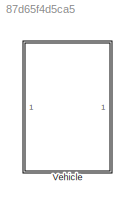
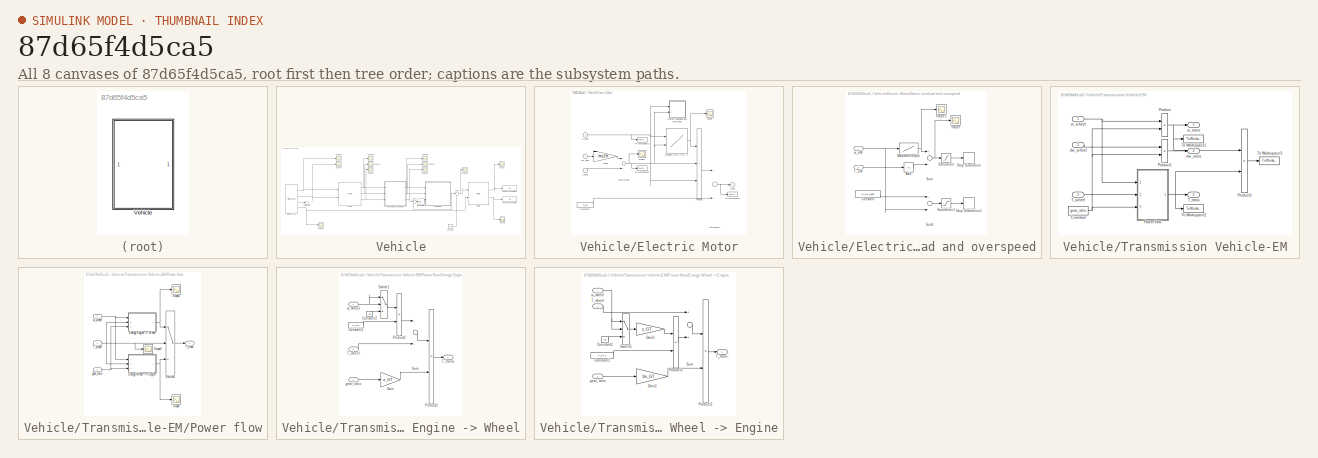
[diagram: thumbnail index - all 8 canvases of the model, root first then tree order]
MODEL slx_87d65f4d5ca5
KIND model
CONFIG AbsTol = auto
CONFIG EnableMultiTasking = on
CONFIG FixedStep = auto
CONFIG MaxStep = auto
CONFIG MinStep = auto
CONFIG RelTol = 1e-3
CONFIG SampleTimeConstraint = Unconstrained
CONFIG Solver = ode45
CONFIG SolverName = ode45
CONFIG StartTime = 0.0
CONFIG StopTime = 1220
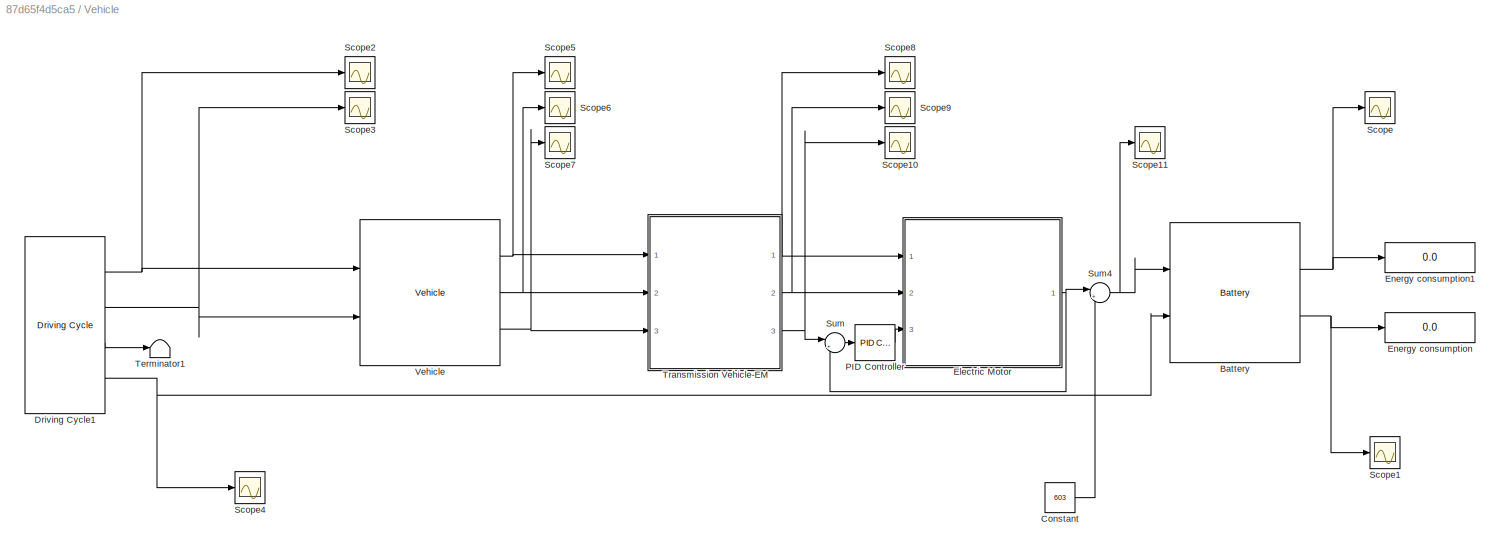
BLOCK [SubSystem] Vehicle
  Ports = []
  RequestExecContextInheritance = off
  Variant = off
BLOCK [Reference] Vehicle/Battery  REF=qss_tb_library/Energy Buffer/Battery  (lib defined in mdl_a75e96b0ff2a, mdl_aad2a3137e65)
  Ports = [2, 2]
  SourceBlock = qss_tb_library/Energy Buffer/Battery
  SourceType = Battery
  Tag = battery
BLOCK [Constant] Vehicle/Constant
  Value = 603
BLOCK [Reference] Vehicle/Driving Cycle1  REF=qss_tb_library/Driving Cycle/Driving Cycle  (lib defined in mdl_a75e96b0ff2a, mdl_aad2a3137e65)
  Ports = [0, 4]
  SourceBlock = qss_tb_library/Driving Cycle/Driving Cycle
  SourceType = Driving Cycle
  Tag = cycle
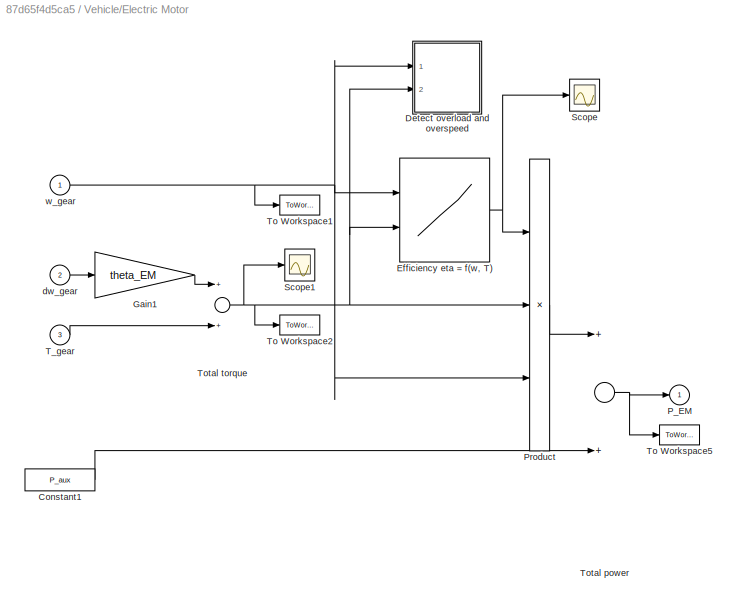
BLOCK [SubSystem] Vehicle/Electric Motor
  AncestorBlock = qss_tb_library/Energy Converter/Electric Motor
  Ports = [3, 1]
  RequestExecContextInheritance = off
  Variant = off
BLOCK [Constant] Vehicle/Electric Motor/Constant1
  Value = P_aux
BLOCK [SubSystem] Vehicle/Electric Motor/Detect overload and overspeed
  Ports = [2]
  RequestExecContextInheritance = off
  Variant = off
BLOCK [Abs] Vehicle/Electric Motor/Detect overload and overspeed/Abs
BLOCK [Constant] Vehicle/Electric Motor/Detect overload and overspeed/Constant
  Value = w_EM_upper
BLOCK [Lookup] Vehicle/Electric Motor/Detect overload and overspeed/Maximum torque
  InputValues = [0,221.5,282.7,314.2,366.5,471.2,576,680.7,759.2]
  Table = [55,55,41.2,38,32.3,26.3,22.5,19.2,17.1]
BLOCK [Saturate] Vehicle/Electric Motor/Detect overload and overspeed/Saturation
  InputPortMap = u0
  LowerLimit = -inf
  Ports = [1, 1]
  UpperLimit = 0
BLOCK [Saturate] Vehicle/Electric Motor/Detect overload and overspeed/Saturation1
  InputPortMap = u0
  LowerLimit = -inf
  Ports = [1, 1]
  UpperLimit = 0
BLOCK [Scope] Vehicle/Electric Motor/Detect overload and overspeed/Scope
  NumInputPorts = 1
  Ports = [1]
  ScopeSpecificationString = Simulink.scopes.TimeScopeBlockCfg('CurrentConfiguration', extmgr.ConfigurationSet(extmgr.Configuration('Core','General UI',true),extmgr.Configuration('Core','Source UI',true),extmgr.Configuration('Sources','WiredSimulink',true,'DataLoggingVariableName','ScopeData1'),extmgr.Configuration('Visuals','Time Domain',true,'SerializedDisplays',{struct('MinYLimReal','17.39436','MaxYLimReal','59.1784','YLab...<+1406ch>
BLOCK [Scope] Vehicle/Electric Motor/Detect overload and overspeed/Scope1
  NumInputPorts = 1
  Ports = [1]
  ScopeSpecificationString = Simulink.scopes.TimeScopeBlockCfg('CurrentConfiguration', extmgr.ConfigurationSet(extmgr.Configuration('Core','General UI',true),extmgr.Configuration('Core','Source UI',true),extmgr.Configuration('Sources','WiredSimulink',true,'DataLoggingVariableName','ScopeData1'),extmgr.Configuration('Visuals','Time Domain',true,'SerializedDisplays',{struct('MinYLimReal','17.41515','MaxYLimReal','59.17609','YLa...<+1434ch>
BLOCK [Stop] Vehicle/Electric Motor/Detect overload and overspeed/Stop Simulation
BLOCK [Stop] Vehicle/Electric Motor/Detect overload and overspeed/Stop Simulation1
BLOCK [Sum] Vehicle/Electric Motor/Detect overload and overspeed/Sum
  Inputs = +-
  Ports = [2, 1]
BLOCK [Sum] Vehicle/Electric Motor/Detect overload and overspeed/Sum1
  Inputs = +-
  Ports = [2, 1]
BLOCK [Inport] Vehicle/Electric Motor/Detect overload and overspeed/T_EM
  IconDisplay = Port number
  Port = 2
BLOCK [Inport] Vehicle/Electric Motor/Detect overload and overspeed/w_EM
  IconDisplay = Port number
BLOCK [Lookup2D] Vehicle/Electric Motor/Efficiency eta = f(w, T)
  ColumnIndex = T_EM_col
  InputSameDT = off
  RowIndex = w_EM_row
  SaturateOnIntegerOverflow = off
  Table = eta_EM_map
BLOCK [Gain] Vehicle/Electric Motor/Gain1
  Gain = theta_EM
BLOCK [Outport] Vehicle/Electric Motor/P_EM
  IconDisplay = Port number
  InitialOutput = 0
BLOCK [Product] Vehicle/Electric Motor/Product
  Inputs = 3
  Ports = [3, 1]
BLOCK [Scope] Vehicle/Electric Motor/Scope
  NumInputPorts = 1
  Ports = [1]
  ScopeSpecificationString = Simulink.scopes.TimeScopeBlockCfg('CurrentConfiguration', extmgr.ConfigurationSet(extmgr.Configuration('Core','General UI',true),extmgr.Configuration('Core','Source UI',true),extmgr.Configuration('Sources','WiredSimulink',true,'DataLoggingVariableName','ScopeData1'),extmgr.Configuration('Visuals','Time Domain',true,'SerializedDisplays',{struct('MinYLimReal','0.49573','MaxYLimReal','1.82336','YLabe...<+1436ch>
BLOCK [Scope] Vehicle/Electric Motor/Scope1
  NumInputPorts = 1
  Ports = [1]
  ScopeSpecificationString = Simulink.scopes.TimeScopeBlockCfg('CurrentConfiguration', extmgr.ConfigurationSet(extmgr.Configuration('Core','General UI',true),extmgr.Configuration('Core','Source UI',true),extmgr.Configuration('Sources','WiredSimulink',true,'DataLoggingVariableName','ScopeData5'),extmgr.Configuration('Visuals','Time Domain',true,'SerializedDisplays',{struct('MinYLimReal','-25.74569','MaxYLimReal','9.63385','YLa...<+1430ch>
BLOCK [Inport] Vehicle/Electric Motor/T_gear
  IconDisplay = Port number
  Port = 3
BLOCK [ToWorkspace] Vehicle/Electric Motor/To Workspace1
  MaxDataPoints = inf
  Ports = [1]
  SampleTime = -1
  VariableName = w_EM
BLOCK [ToWorkspace] Vehicle/Electric Motor/To Workspace2
  MaxDataPoints = inf
  Ports = [1]
  SampleTime = -1
  VariableName = T_EM
BLOCK [ToWorkspace] Vehicle/Electric Motor/To Workspace5
  MaxDataPoints = inf
  Ports = [1]
  SampleTime = -1
  VariableName = P_EM
BLOCK [Sum] Vehicle/Electric Motor/Total power
  Ports = [2, 1]
BLOCK [Sum] Vehicle/Electric Motor/Total torque
  Ports = [2, 1]
BLOCK [Inport] Vehicle/Electric Motor/dw_gear
  IconDisplay = Port number
  Port = 2
BLOCK [Inport] Vehicle/Electric Motor/w_gear
  IconDisplay = Port number
BLOCK [Display] Vehicle/Energy consumption
  Decimation = 1
  Ports = [1]
BLOCK [Display] Vehicle/Energy consumption1
  Decimation = 1
  Ports = [1]
BLOCK [Reference] Vehicle/PID Controller  REF=simulink/Continuous/PID Controller
  Ports = [1, 1]
  SourceBlock = simulink/Continuous/PID Controller
  SourceProductBaseCode = SL
  SourceProductName = Simulink
  SourceType = PID 1dof
BLOCK [Scope] Vehicle/Scope
  NumInputPorts = 1
  Ports = [1]
  ScopeSpecificationString = Simulink.scopes.TimeScopeBlockCfg('CurrentConfiguration', extmgr.ConfigurationSet(extmgr.Configuration('Core','General UI',true),extmgr.Configuration('Core','Source UI',true),extmgr.Configuration('Sources','WiredSimulink',true),extmgr.Configuration('Visuals','Time Domain',true,'SerializedDisplays',{struct('MinYLimReal','83651.08189','MaxYLimReal','101825.43535','YLabelReal','','MinYLimMag','83651....<+1418ch>
BLOCK [Scope] Vehicle/Scope1
  NumInputPorts = 1
  Ports = [1]
  ScopeSpecificationString = Simulink.scopes.TimeScopeBlockCfg('CurrentConfiguration', extmgr.ConfigurationSet(extmgr.Configuration('Core','General UI',true),extmgr.Configuration('Core','Source UI',true),extmgr.Configuration('Sources','WiredSimulink',true,'DataLoggingVariableName','ScopeData1'),extmgr.Configuration('Visuals','Time Domain',true,'SerializedDisplays',{struct('MinYLimReal','-115.28702','MaxYLimReal','1037.58322',...<+1441ch>
BLOCK [Scope] Vehicle/Scope10
  NumInputPorts = 1
  Ports = [1]
  ScopeSpecificationString = Simulink.scopes.TimeScopeBlockCfg('CurrentConfiguration', extmgr.ConfigurationSet(extmgr.Configuration('Core','General UI',true),extmgr.Configuration('Core','Source UI',true),extmgr.Configuration('Sources','WiredSimulink',true,'DataLoggingVariableName','ScopeData10'),extmgr.Configuration('Visuals','Time Domain',true,'SerializedDisplays',{struct('MinYLimReal','-6.74545','MaxYLimReal','57.92657','YL...<+1445ch>
BLOCK [Scope] Vehicle/Scope11
  NumInputPorts = 1
  Ports = [1]
  ScopeSpecificationString = Simulink.scopes.TimeScopeBlockCfg('CurrentConfiguration', extmgr.ConfigurationSet(extmgr.Configuration('Core','General UI',true),extmgr.Configuration('Core','Source UI',true),extmgr.Configuration('Sources','WiredSimulink',true,'DataLoggingVariableName','ScopeData11'),extmgr.Configuration('Visuals','Time Domain',true,'SerializedDisplays',{struct('MinYLimReal','576.99254','MaxYLimReal','671.8376','Y...<+1429ch>
BLOCK [Scope] Vehicle/Scope2
  NumInputPorts = 1
  Ports = [1]
  ScopeSpecificationString = Simulink.scopes.TimeScopeBlockCfg('CurrentConfiguration', extmgr.ConfigurationSet(extmgr.Configuration('Core','General UI',true),extmgr.Configuration('Core','Source UI',true),extmgr.Configuration('Sources','WiredSimulink',true,'DataLoggingVariableName','ScopeData2'),extmgr.Configuration('Visuals','Time Domain',true,'SerializedDisplays',{struct('MinYLimReal','-2.87708','MaxYLimReal','25.89375','YLa...<+1434ch>
BLOCK [Scope] Vehicle/Scope3
  NumInputPorts = 1
  Ports = [1]
  ScopeSpecificationString = Simulink.scopes.TimeScopeBlockCfg('CurrentConfiguration', extmgr.ConfigurationSet(extmgr.Configuration('Core','General UI',true),extmgr.Configuration('Core','Source UI',true),extmgr.Configuration('Sources','WiredSimulink',true,'DataLoggingVariableName','ScopeData3'),extmgr.Configuration('Visuals','Time Domain',true,'SerializedDisplays',{struct('MinYLimReal','-1.22396','MaxYLimReal','1.2934','YLabe...<+1452ch>
BLOCK [Scope] Vehicle/Scope4
  NumInputPorts = 1
  Ports = [1]
  ScopeSpecificationString = Simulink.scopes.TimeScopeBlockCfg('CurrentConfiguration', extmgr.ConfigurationSet(extmgr.Configuration('Core','General UI',true),extmgr.Configuration('Core','Source UI',true),extmgr.Configuration('Sources','WiredSimulink',true,'DataLoggingVariableName','ScopeData4'),extmgr.Configuration('Visuals','Time Domain',true,'SerializedDisplays',{struct('MinYLimReal','-994.59028','MaxYLimReal','8961.3125','...<+1444ch>
BLOCK [Scope] Vehicle/Scope5
  NumInputPorts = 1
  Ports = [1]
  ScopeSpecificationString = Simulink.scopes.TimeScopeBlockCfg('CurrentConfiguration', extmgr.ConfigurationSet(extmgr.Configuration('Core','General UI',true),extmgr.Configuration('Core','Source UI',true),extmgr.Configuration('Sources','WiredSimulink',true,'DataLoggingVariableName','ScopeData5'),extmgr.Configuration('Visuals','Time Domain',true,'SerializedDisplays',{struct('MinYLimReal','-21.60115','MaxYLimReal','194.41038','Y...<+1433ch>
BLOCK [Scope] Vehicle/Scope6
  NumInputPorts = 1
  Ports = [1]
  ScopeSpecificationString = Simulink.scopes.TimeScopeBlockCfg('CurrentConfiguration', extmgr.ConfigurationSet(extmgr.Configuration('Core','General UI',true),extmgr.Configuration('Core','Source UI',true),extmgr.Configuration('Sources','WiredSimulink',true,'DataLoggingVariableName','ScopeData6'),extmgr.Configuration('Visuals','Time Domain',true,'SerializedDisplays',{struct('MinYLimReal','-1.22349','MaxYLimReal','1.28937','YLab...<+1423ch>
BLOCK [Scope] Vehicle/Scope7
  NumInputPorts = 1
  Ports = [1]
  ScopeSpecificationString = Simulink.scopes.TimeScopeBlockCfg('CurrentConfiguration', extmgr.ConfigurationSet(extmgr.Configuration('Core','General UI',true),extmgr.Configuration('Core','Source UI',true),extmgr.Configuration('Sources','WiredSimulink',true,'DataLoggingVariableName','ScopeData7'),extmgr.Configuration('Visuals','Time Domain',true,'SerializedDisplays',{struct('MinYLimReal','-6.99799','MaxYLimReal','27.39879','YLa...<+1427ch>
BLOCK [Scope] Vehicle/Scope8
  NumInputPorts = 1
  Ports = [1]
  ScopeSpecificationString = Simulink.scopes.TimeScopeBlockCfg('CurrentConfiguration', extmgr.ConfigurationSet(extmgr.Configuration('Core','General UI',true),extmgr.Configuration('Core','Source UI',true),extmgr.Configuration('Sources','WiredSimulink',true,'DataLoggingVariableName','ScopeData8'),extmgr.Configuration('Visuals','Time Domain',true,'SerializedDisplays',{struct('MinYLimReal','-75.60404','MaxYLimReal','680.43632','Y...<+1476ch>
BLOCK [Scope] Vehicle/Scope9
  NumInputPorts = 1
  Ports = [1]
  ScopeSpecificationString = Simulink.scopes.TimeScopeBlockCfg('CurrentConfiguration', extmgr.ConfigurationSet(extmgr.Configuration('Core','General UI',true),extmgr.Configuration('Core','Source UI',true),extmgr.Configuration('Sources','WiredSimulink',true,'DataLoggingVariableName','ScopeData9'),extmgr.Configuration('Visuals','Time Domain',true,'SerializedDisplays',{struct('MinYLimReal','-1.22311','MaxYLimReal','1.28586','YLab...<+1440ch>
BLOCK [Sum] Vehicle/Sum
  IconShape = round
  InputSameDT = off
  Inputs = |+-
  OutDataTypeStr = Inherit: Inherit via internal rule
  Ports = [2, 1]
  SaturateOnIntegerOverflow = off
BLOCK [Sum] Vehicle/Sum4
  IconShape = round
  InputSameDT = off
  Inputs = |++
  OutDataTypeStr = Inherit: Inherit via internal rule
  Ports = [2, 1]
  SaturateOnIntegerOverflow = off
BLOCK [Terminator] Vehicle/Terminator1
BLOCK [SubSystem] Vehicle/Transmission Vehicle-EM
  AncestorBlock = qss_tb_library/Gear System/Transmission
  Ports = [3, 3]
  RequestExecContextInheritance = off
  Tag = simple transmission
  Variant = off
BLOCK [Constant] Vehicle/Transmission Vehicle-EM/Constant
  Value = gear_ratio
BLOCK [SubSystem] Vehicle/Transmission Vehicle-EM/Power flow
  Ports = [3, 1]
  RequestExecContextInheritance = off
  Variant = off
BLOCK [SubSystem] Vehicle/Transmission Vehicle-EM/Power flow/Energy Engine -> Wheel
  Ports = [3, 1]
  RequestExecContextInheritance = off
  Variant = off
BLOCK [Constant] Vehicle/Transmission Vehicle-EM/Power flow/Energy Engine -> Wheel/Constant1
  Value = P_GT0
BLOCK [Constant] Vehicle/Transmission Vehicle-EM/Power flow/Energy Engine -> Wheel/Constant2
  Value = inf
BLOCK [Gain] Vehicle/Transmission Vehicle-EM/Power flow/Energy Engine -> Wheel/Gain
  Gain = e_GT
BLOCK [Product] Vehicle/Transmission Vehicle-EM/Power flow/Energy Engine -> Wheel/Product2
  Inputs = */
  Ports = [2, 1]
BLOCK [Product] Vehicle/Transmission Vehicle-EM/Power flow/Energy Engine -> Wheel/Product3
  Inputs = /*
  Ports = [2, 1]
BLOCK [Sum] Vehicle/Transmission Vehicle-EM/Power flow/Energy Engine -> Wheel/Sum
  Ports = [2, 1]
BLOCK [Switch] Vehicle/Transmission Vehicle-EM/Power flow/Energy Engine -> Wheel/Switch1
  Threshold = w_wheel_min
BLOCK [Outport] Vehicle/Transmission Vehicle-EM/Power flow/Energy Engine -> Wheel/T_trans+
  IconDisplay = Port number
  InitialOutput = 0
BLOCK [Inport] Vehicle/Transmission Vehicle-EM/Power flow/Energy Engine -> Wheel/T_wheel
  IconDisplay = Port number
  Port = 2
BLOCK [Inport] Vehicle/Transmission Vehicle-EM/Power flow/Energy Engine -> Wheel/gear_ratio
  IconDisplay = Port number
  Port = 3
BLOCK [Inport] Vehicle/Transmission Vehicle-EM/Power flow/Energy Engine -> Wheel/w_wheel
  IconDisplay = Port number
BLOCK [SubSystem] Vehicle/Transmission Vehicle-EM/Power flow/Energy Wheel -> Engine
  Ports = [3, 1]
  RequestExecContextInheritance = off
  Variant = off
BLOCK [Constant] Vehicle/Transmission Vehicle-EM/Power flow/Energy Wheel -> Engine/Constant1
  Value = P_GT0
BLOCK [Constant] Vehicle/Transmission Vehicle-EM/Power flow/Energy Wheel -> Engine/Constant2
  Value = inf
BLOCK [Gain] Vehicle/Transmission Vehicle-EM/Power flow/Energy Wheel -> Engine/Gain1
  Gain = e_GT
BLOCK [Gain] Vehicle/Transmission Vehicle-EM/Power flow/Energy Wheel -> Engine/Gain2
  Gain = 1/e_GT
BLOCK [Product] Vehicle/Transmission Vehicle-EM/Power flow/Energy Wheel -> Engine/Product2
  Inputs = */
  Ports = [2, 1]
BLOCK [Product] Vehicle/Transmission Vehicle-EM/Power flow/Energy Wheel -> Engine/Product3
  Inputs = /*
  Ports = [2, 1]
BLOCK [Sum] Vehicle/Transmission Vehicle-EM/Power flow/Energy Wheel -> Engine/Sum
  Ports = [2, 1]
BLOCK [Switch] Vehicle/Transmission Vehicle-EM/Power flow/Energy Wheel -> Engine/Switch1
  Threshold = w_wheel_min
BLOCK [Outport] Vehicle/Transmission Vehicle-EM/Power flow/Energy Wheel -> Engine/T_trans-
  IconDisplay = Port number
  InitialOutput = 0
BLOCK [Inport] Vehicle/Transmission Vehicle-EM/Power flow/Energy Wheel -> Engine/T_wheel
  IconDisplay = Port number
  Port = 2
BLOCK [Inport] Vehicle/Transmission Vehicle-EM/Power flow/Energy Wheel -> Engine/gear_ratio
  IconDisplay = Port number
  Port = 3
BLOCK [Inport] Vehicle/Transmission Vehicle-EM/Power flow/Energy Wheel -> Engine/w_wheel
  IconDisplay = Port number
BLOCK [Scope] Vehicle/Transmission Vehicle-EM/Power flow/Scope
  NumInputPorts = 1
  Ports = [1]
  ScopeSpecificationString = Simulink.scopes.TimeScopeBlockCfg('CurrentConfiguration', extmgr.ConfigurationSet(extmgr.Configuration('Core','General UI',true),extmgr.Configuration('Core','Source UI',true),extmgr.Configuration('Sources','WiredSimulink',true,'DataLoggingVariableName','ScopeData2'),extmgr.Configuration('Visuals','Time Domain',true,'SerializedDisplays',{struct('MinYLimReal','-23.65589','MaxYLimReal','67.10916','YL...<+1429ch>
BLOCK [Scope] Vehicle/Transmission Vehicle-EM/Power flow/Scope1
  NumInputPorts = 1
  Ports = [1]
  ScopeSpecificationString = Simulink.scopes.TimeScopeBlockCfg('CurrentConfiguration', extmgr.ConfigurationSet(extmgr.Configuration('Core','General UI',true),extmgr.Configuration('Core','Source UI',true),extmgr.Configuration('Sources','WiredSimulink',true,'DataLoggingVariableName','ScopeData3'),extmgr.Configuration('Visuals','Time Domain',true,'SerializedDisplays',{struct('MinYLimReal','-24.53881','MaxYLimReal','68.75776','YL...<+1443ch>
BLOCK [Scope] Vehicle/Transmission Vehicle-EM/Power flow/Scope2
  NumInputPorts = 1
  Ports = [1]
  ScopeSpecificationString = Simulink.scopes.TimeScopeBlockCfg('CurrentConfiguration', extmgr.ConfigurationSet(extmgr.Configuration('Core','General UI',true),extmgr.Configuration('Core','Source UI',true),extmgr.Configuration('Sources','WiredSimulink',true,'DataLoggingVariableName','ScopeData4'),extmgr.Configuration('Visuals','Time Domain',true,'SerializedDisplays',{struct('MinYLimReal','-75.83041','MaxYLimReal','90.70502','YL...<+1400ch>
BLOCK [Switch] Vehicle/Transmission Vehicle-EM/Power flow/Switch1
BLOCK [Outport] Vehicle/Transmission Vehicle-EM/Power flow/T_trans
  IconDisplay = Port number
  InitialOutput = 0
BLOCK [Inport] Vehicle/Transmission Vehicle-EM/Power flow/T_wheel
  IconDisplay = Port number
  Port = 2
BLOCK [Inport] Vehicle/Transmission Vehicle-EM/Power flow/gear_ratio
  IconDisplay = Port number
  Port = 3
BLOCK [Inport] Vehicle/Transmission Vehicle-EM/Power flow/w_wheel
  IconDisplay = Port number
BLOCK [Product] Vehicle/Transmission Vehicle-EM/Product
  Ports = [2, 1]
BLOCK [Product] Vehicle/Transmission Vehicle-EM/Product1
  Ports = [2, 1]
BLOCK [Product] Vehicle/Transmission Vehicle-EM/Product3
  Ports = [2, 1]
BLOCK [Outport] Vehicle/Transmission Vehicle-EM/T_trans
  IconDisplay = Port number
  InitialOutput = 0
  Port = 3
BLOCK [Inport] Vehicle/Transmission Vehicle-EM/T_wheel
  IconDisplay = Port number
  Port = 3
BLOCK [ToWorkspace] Vehicle/Transmission Vehicle-EM/To Workspace1
  MaxDataPoints = inf
  Ports = [1]
  SampleTime = -1
  VariableName = w_trans_1
BLOCK [ToWorkspace] Vehicle/Transmission Vehicle-EM/To Workspace2
  MaxDataPoints = inf
  Ports = [1]
  SampleTime = -1
  VariableName = T_trans_1
BLOCK [ToWorkspace] Vehicle/Transmission Vehicle-EM/To Workspace3
  MaxDataPoints = inf
  Ports = [1]
  SampleTime = -1
  VariableName = P_trans_1
BLOCK [Outport] Vehicle/Transmission Vehicle-EM/dw_trans
  IconDisplay = Port number
  InitialOutput = 0
  Port = 2
BLOCK [Inport] Vehicle/Transmission Vehicle-EM/dw_wheel
  IconDisplay = Port number
  Port = 2
BLOCK [Outport] Vehicle/Transmission Vehicle-EM/w_trans
  IconDisplay = Port number
  InitialOutput = 0
BLOCK [Inport] Vehicle/Transmission Vehicle-EM/w_wheel
  IconDisplay = Port number
BLOCK [Reference] Vehicle/Vehicle  REF=qss_tb_library/Vehicle/Vehicle  (lib defined in mdl_a75e96b0ff2a, mdl_aad2a3137e65)
  Ports = [2, 3]
  SourceBlock = qss_tb_library/Vehicle/Vehicle
  SourceType = Vehicle
  Tag = vehicle
NET Vehicle/Battery:1 -> Vehicle/Energy consumption1:1, Vehicle/Scope:1
NET Vehicle/Battery:2 -> Vehicle/Energy consumption:1, Vehicle/Scope1:1
LINE Vehicle/Constant:1 -> Vehicle/Sum4:2
NET Vehicle/Driving Cycle1:1 -> Vehicle/Scope2:1, Vehicle/Vehicle:1
NET Vehicle/Driving Cycle1:2 -> Vehicle/Scope3:1, Vehicle/Vehicle:2
LINE Vehicle/Driving Cycle1:3 -> Vehicle/Terminator1:1
NET Vehicle/Driving Cycle1:4 -> Vehicle/Battery:2, Vehicle/Scope4:1
NET Vehicle/Electric Motor:1 -> Vehicle/Sum4:1, Vehicle/Sum:2
LINE Vehicle/PID Controller:1 -> Vehicle/Electric Motor:3
NET Vehicle/Sum4:1 -> Vehicle/Battery:1, Vehicle/Scope11:1
LINE Vehicle/Sum:1 -> Vehicle/PID Controller:1
NET Vehicle/Transmission Vehicle-EM:1 -> Vehicle/Electric Motor:1, Vehicle/Scope8:1
NET Vehicle/Transmission Vehicle-EM:2 -> Vehicle/Electric Motor:2, Vehicle/Scope9:1
NET Vehicle/Transmission Vehicle-EM:3 -> Vehicle/Scope10:1, Vehicle/Sum:1
NET Vehicle/Vehicle:1 -> Vehicle/Scope5:1, Vehicle/Transmission Vehicle-EM:1
NET Vehicle/Vehicle:2 -> Vehicle/Scope6:1, Vehicle/Transmission Vehicle-EM:2
NET Vehicle/Vehicle:3 -> Vehicle/Scope7:1, Vehicle/Transmission Vehicle-EM:3
note: NET lines group one-source signal fan-out (src -> all destinations, sorted); 1:1 wires keep LINE
